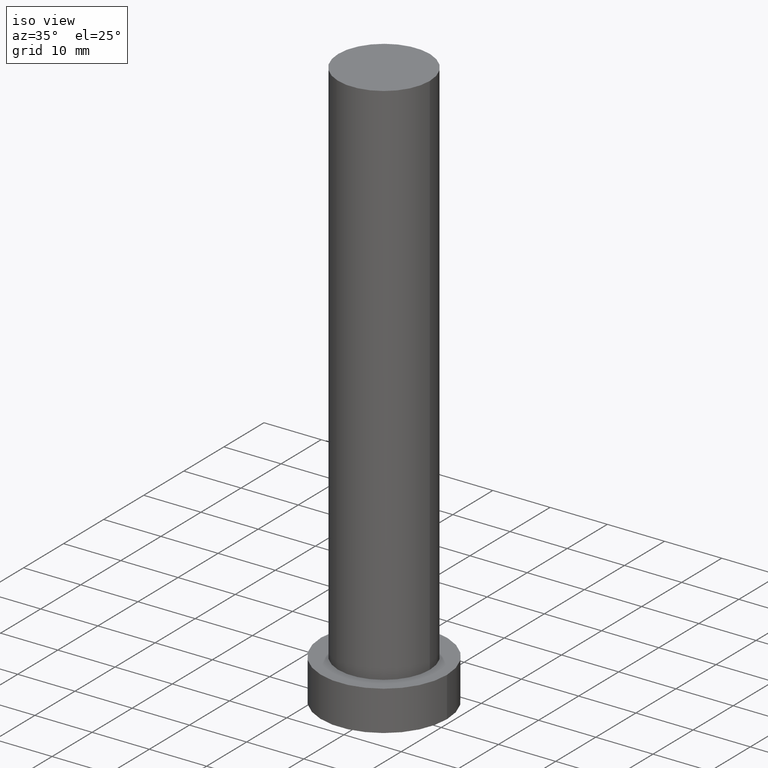
[diagram: clean part render]
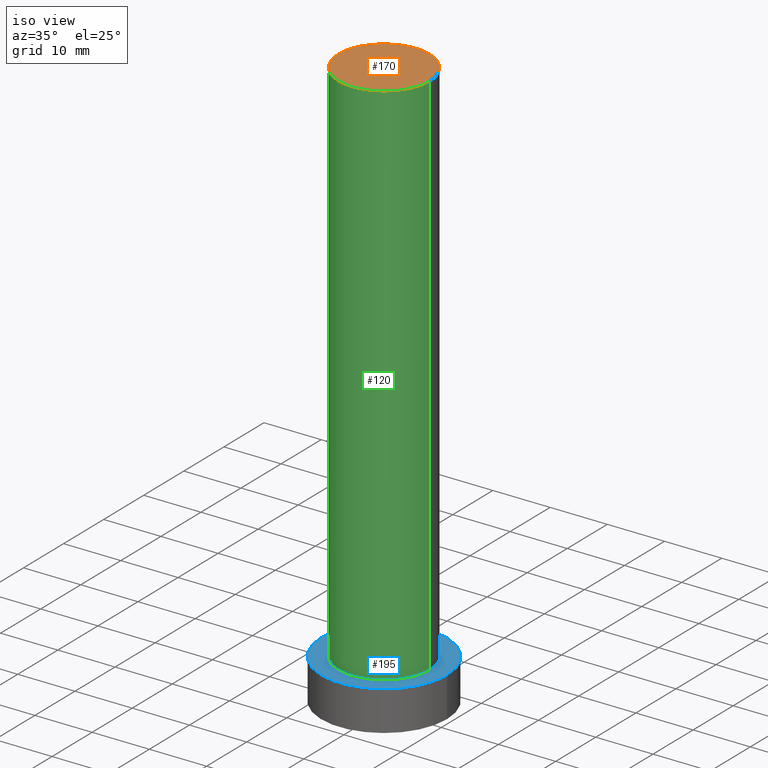
[diagram: same view with three faces highlighted in distinct colors, each labeled with its STEP entity id]
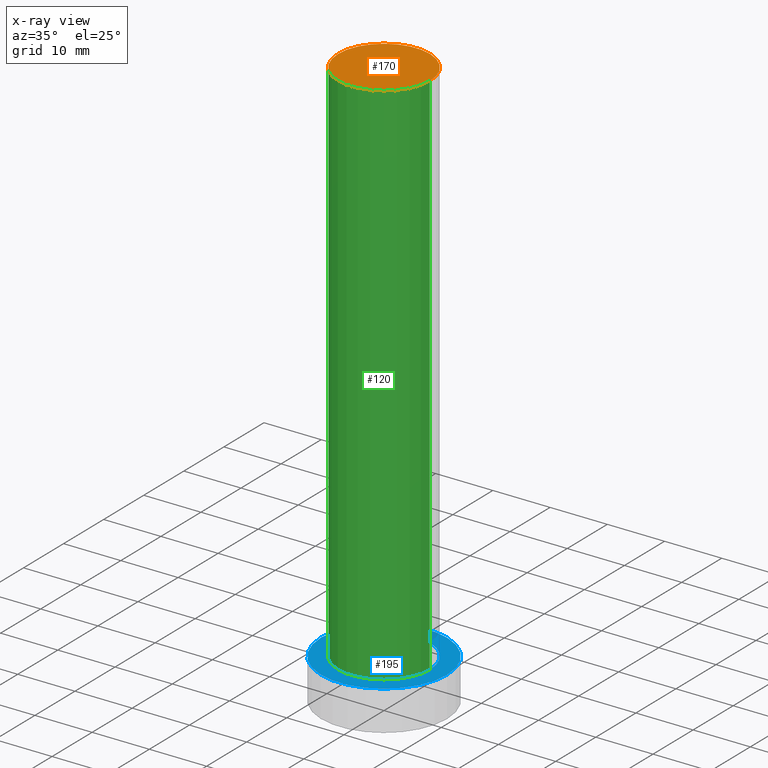
[diagram: x-ray of the same camera — body ghosted, the three highlighted faces saturated]
A machine part, iso view with three faces highlighted in distinct colors.
The next image is the same camera in x-ray (body ghosted, the three faces saturated) — at least one of them is partly hidden behind the body in this view.
Their STEP definitions:

[orange] entity #170 — the highlighted planar face has unit normal (0, 0, 1).
#12 = AXIS2_PLACEMENT_3D ( 'NONE', #160, #121, #207 ) ;
#26 = CARTESIAN_POINT ( 'NONE',  ( -8.000000000000000000, 0.000000000000000000, 100.0000000000000000 ) ) ;
#36 = DIRECTION ( 'NONE',  ( 1.000000000000000000, 0.000000000000000000, 0.000000000000000000 ) ) ;
#39 = FACE_OUTER_BOUND ( 'NONE', #223, .T. ) ;
#42 = DIRECTION ( 'NONE',  ( 1.000000000000000000, 0.000000000000000000, -0.000000000000000000 ) ) ;
#46 = CARTESIAN_POINT ( 'NONE',  ( 8.000000000000000000, 9.797174393178823685E-16, 100.0000000000000000 ) ) ;
#53 = CIRCLE ( 'NONE', #12, 8.000000000000000000 ) ;
#63 = EDGE_CURVE ( 'NONE', #147, #80, #53, .T. ) ;
#64 = CARTESIAN_POINT ( 'NONE',  ( 0.000000000000000000, 0.000000000000000000, 100.0000000000000000 ) ) ;
#71 = CIRCLE ( 'NONE', #221, 8.000000000000000000 ) ;
#80 = VERTEX_POINT ( 'NONE', #46 ) ;
#85 = PLANE ( 'NONE',  #212 ) ;
#115 = ORIENTED_EDGE ( 'NONE', *, *, #63, .T. ) ;
#121 = DIRECTION ( 'NONE',  ( 0.000000000000000000, 0.000000000000000000, 1.000000000000000000 ) ) ;
#134 = CARTESIAN_POINT ( 'NONE',  ( 0.000000000000000000, 0.000000000000000000, 100.0000000000000000 ) ) ;
#144 = DIRECTION ( 'NONE',  ( 0.000000000000000000, 0.000000000000000000, 1.000000000000000000 ) ) ;
#147 = VERTEX_POINT ( 'NONE', #26 ) ;
#160 = CARTESIAN_POINT ( 'NONE',  ( 0.000000000000000000, 0.000000000000000000, 100.0000000000000000 ) ) ;
#161 = EDGE_CURVE ( 'NONE', #80, #147, #71, .T. ) ;
#170 = ADVANCED_FACE ( 'NONE', ( #39 ), #85, .T. ) ;
#180 = DIRECTION ( 'NONE',  ( 0.000000000000000000, 0.000000000000000000, 1.000000000000000000 ) ) ;
#181 = ORIENTED_EDGE ( 'NONE', *, *, #161, .T. ) ;
#207 = DIRECTION ( 'NONE',  ( 1.000000000000000000, 0.000000000000000000, 0.000000000000000000 ) ) ;
#212 = AXIS2_PLACEMENT_3D ( 'NONE', #134, #180, #42 ) ;
#221 = AXIS2_PLACEMENT_3D ( 'NONE', #64, #144, #36 ) ;
#223 = EDGE_LOOP ( 'NONE', ( #115, #181 ) ) ;

[blue] entity #195 — the highlighted planar face has unit normal (0, 0, 1).
#2 = CARTESIAN_POINT ( 'NONE',  ( 11.00000000000000000, 1.347111479062088405E-15, 7.000000000000000000 ) ) ;
#10 = CARTESIAN_POINT ( 'NONE',  ( 0.000000000000000000, 0.000000000000000000, 7.000000000000000000 ) ) ;
#13 = CARTESIAN_POINT ( 'NONE',  ( 0.000000000000000000, 0.000000000000000000, 7.000000000000000000 ) ) ;
#23 = VERTEX_POINT ( 'NONE', #58 ) ;
#28 = EDGE_LOOP ( 'NONE', ( #249, #101 ) ) ;
#44 = FACE_OUTER_BOUND ( 'NONE', #239, .T. ) ;
#48 = EDGE_CURVE ( 'NONE', #149, #162, #229, .T. ) ;
#50 = DIRECTION ( 'NONE',  ( 0.000000000000000000, 0.000000000000000000, 1.000000000000000000 ) ) ;
#56 = CIRCLE ( 'NONE', #141, 8.000000000000000000 ) ;
#58 = CARTESIAN_POINT ( 'NONE',  ( -11.00000000000000000, 0.000000000000000000, 7.000000000000000000 ) ) ;
#61 = DIRECTION ( 'NONE',  ( 1.000000000000000000, 0.000000000000000000, 0.000000000000000000 ) ) ;
#65 = DIRECTION ( 'NONE',  ( 0.000000000000000000, 0.000000000000000000, 1.000000000000000000 ) ) ;
#77 = DIRECTION ( 'NONE',  ( 0.000000000000000000, 0.000000000000000000, 1.000000000000000000 ) ) ;
#81 = EDGE_CURVE ( 'NONE', #162, #149, #56, .T. ) ;
#98 = DIRECTION ( 'NONE',  ( 1.000000000000000000, 0.000000000000000000, 0.000000000000000000 ) ) ;
#99 = EDGE_CURVE ( 'NONE', #23, #224, #152, .T. ) ;
#101 = ORIENTED_EDGE ( 'NONE', *, *, #81, .F. ) ;
#113 = PLANE ( 'NONE',  #201 ) ;
#122 = CARTESIAN_POINT ( 'NONE',  ( 0.000000000000000000, 0.000000000000000000, 7.000000000000000000 ) ) ;
#123 = ORIENTED_EDGE ( 'NONE', *, *, #179, .T. ) ;
#127 = DIRECTION ( 'NONE',  ( 0.000000000000000000, 0.000000000000000000, 1.000000000000000000 ) ) ;
#135 = CARTESIAN_POINT ( 'NONE',  ( -8.000000000000000000, 0.000000000000000000, 7.000000000000000000 ) ) ;
#141 = AXIS2_PLACEMENT_3D ( 'NONE', #10, #50, #98 ) ;
#143 = ORIENTED_EDGE ( 'NONE', *, *, #99, .T. ) ;
#149 = VERTEX_POINT ( 'NONE', #135 ) ;
#152 = CIRCLE ( 'NONE', #255, 11.00000000000000000 ) ;
#158 = AXIS2_PLACEMENT_3D ( 'NONE', #13, #77, #61 ) ;
#162 = VERTEX_POINT ( 'NONE', #219 ) ;
#168 = CIRCLE ( 'NONE', #198, 11.00000000000000000 ) ;
#175 = FACE_BOUND ( 'NONE', #28, .T. ) ;
#179 = EDGE_CURVE ( 'NONE', #224, #23, #168, .T. ) ;
#183 = CARTESIAN_POINT ( 'NONE',  ( 0.000000000000000000, 0.000000000000000000, 7.000000000000000000 ) ) ;
#189 = DIRECTION ( 'NONE',  ( 0.000000000000000000, 0.000000000000000000, 1.000000000000000000 ) ) ;
#195 = ADVANCED_FACE ( 'NONE', ( #175, #44 ), #113, .T. ) ;
#198 = AXIS2_PLACEMENT_3D ( 'NONE', #183, #65, #243 ) ;
#201 = AXIS2_PLACEMENT_3D ( 'NONE', #122, #189, #210 ) ;
#210 = DIRECTION ( 'NONE',  ( 1.000000000000000000, 0.000000000000000000, -0.000000000000000000 ) ) ;
#215 = DIRECTION ( 'NONE',  ( 1.000000000000000000, 0.000000000000000000, 0.000000000000000000 ) ) ;
#219 = CARTESIAN_POINT ( 'NONE',  ( 8.000000000000000000, 9.797174393178823685E-16, 7.000000000000000000 ) ) ;
#224 = VERTEX_POINT ( 'NONE', #2 ) ;
#229 = CIRCLE ( 'NONE', #158, 8.000000000000000000 ) ;
#230 = CARTESIAN_POINT ( 'NONE',  ( 0.000000000000000000, 0.000000000000000000, 7.000000000000000000 ) ) ;
#239 = EDGE_LOOP ( 'NONE', ( #143, #123 ) ) ;
#243 = DIRECTION ( 'NONE',  ( 1.000000000000000000, 0.000000000000000000, 0.000000000000000000 ) ) ;
#249 = ORIENTED_EDGE ( 'NONE', *, *, #48, .F. ) ;
#255 = AXIS2_PLACEMENT_3D ( 'NONE', #230, #127, #215 ) ;

[green] entity #120 — the highlighted cylindrical surface (partial cylindrical patch) has radius 8 mm, axis along (-0, -0, -1).
#12 = AXIS2_PLACEMENT_3D ( 'NONE', #160, #121, #207 ) ;
#13 = CARTESIAN_POINT ( 'NONE',  ( 0.000000000000000000, 0.000000000000000000, 7.000000000000000000 ) ) ;
#17 = EDGE_CURVE ( 'NONE', #147, #149, #126, .T. ) ;
#26 = CARTESIAN_POINT ( 'NONE',  ( -8.000000000000000000, 0.000000000000000000, 100.0000000000000000 ) ) ;
#46 = CARTESIAN_POINT ( 'NONE',  ( 8.000000000000000000, 9.797174393178823685E-16, 100.0000000000000000 ) ) ;
#48 = EDGE_CURVE ( 'NONE', #149, #162, #229, .T. ) ;
#53 = CIRCLE ( 'NONE', #12, 8.000000000000000000 ) ;
#54 = LINE ( 'NONE', #186, #82 ) ;
#61 = DIRECTION ( 'NONE',  ( 1.000000000000000000, 0.000000000000000000, 0.000000000000000000 ) ) ;
#63 = EDGE_CURVE ( 'NONE', #147, #80, #53, .T. ) ;
#67 = AXIS2_PLACEMENT_3D ( 'NONE', #72, #104, #94 ) ;
#72 = CARTESIAN_POINT ( 'NONE',  ( 0.000000000000000000, 0.000000000000000000, 100.0000000000000000 ) ) ;
#77 = DIRECTION ( 'NONE',  ( 0.000000000000000000, 0.000000000000000000, 1.000000000000000000 ) ) ;
#80 = VERTEX_POINT ( 'NONE', #46 ) ;
#82 = VECTOR ( 'NONE', #209, 1000.000000000000000 ) ;
#94 = DIRECTION ( 'NONE',  ( -1.000000000000000000, 0.000000000000000000, 0.000000000000000000 ) ) ;
#95 = ORIENTED_EDGE ( 'NONE', *, *, #48, .T. ) ;
#103 = VECTOR ( 'NONE', #190, 1000.000000000000000 ) ;
#104 = DIRECTION ( 'NONE',  ( -0.000000000000000000, -0.000000000000000000, -1.000000000000000000 ) ) ;
#110 = ORIENTED_EDGE ( 'NONE', *, *, #17, .T. ) ;
#120 = ADVANCED_FACE ( 'NONE', ( #194 ), #169, .T. ) ;
#121 = DIRECTION ( 'NONE',  ( 0.000000000000000000, 0.000000000000000000, 1.000000000000000000 ) ) ;
#126 = LINE ( 'NONE', #211, #103 ) ;
#133 = ORIENTED_EDGE ( 'NONE', *, *, #63, .F. ) ;
#135 = CARTESIAN_POINT ( 'NONE',  ( -8.000000000000000000, 0.000000000000000000, 7.000000000000000000 ) ) ;
#147 = VERTEX_POINT ( 'NONE', #26 ) ;
#149 = VERTEX_POINT ( 'NONE', #135 ) ;
#158 = AXIS2_PLACEMENT_3D ( 'NONE', #13, #77, #61 ) ;
#159 = ORIENTED_EDGE ( 'NONE', *, *, #253, .F. ) ;
#160 = CARTESIAN_POINT ( 'NONE',  ( 0.000000000000000000, 0.000000000000000000, 100.0000000000000000 ) ) ;
#162 = VERTEX_POINT ( 'NONE', #219 ) ;
#169 = CYLINDRICAL_SURFACE ( 'NONE', #67, 8.000000000000000000 ) ;
#184 = EDGE_LOOP ( 'NONE', ( #159, #133, #110, #95 ) ) ;
#186 = CARTESIAN_POINT ( 'NONE',  ( 8.000000000000000000, 9.797174393178823685E-16, 100.0000000000000000 ) ) ;
#190 = DIRECTION ( 'NONE',  ( -0.000000000000000000, -0.000000000000000000, -1.000000000000000000 ) ) ;
#194 = FACE_OUTER_BOUND ( 'NONE', #184, .T. ) ;
#207 = DIRECTION ( 'NONE',  ( 1.000000000000000000, 0.000000000000000000, 0.000000000000000000 ) ) ;
#209 = DIRECTION ( 'NONE',  ( -0.000000000000000000, -0.000000000000000000, -1.000000000000000000 ) ) ;
#211 = CARTESIAN_POINT ( 'NONE',  ( -8.000000000000000000, 0.000000000000000000, 100.0000000000000000 ) ) ;
#219 = CARTESIAN_POINT ( 'NONE',  ( 8.000000000000000000, 9.797174393178823685E-16, 7.000000000000000000 ) ) ;
#229 = CIRCLE ( 'NONE', #158, 8.000000000000000000 ) ;
#253 = EDGE_CURVE ( 'NONE', #80, #162, #54, .T. ) ;